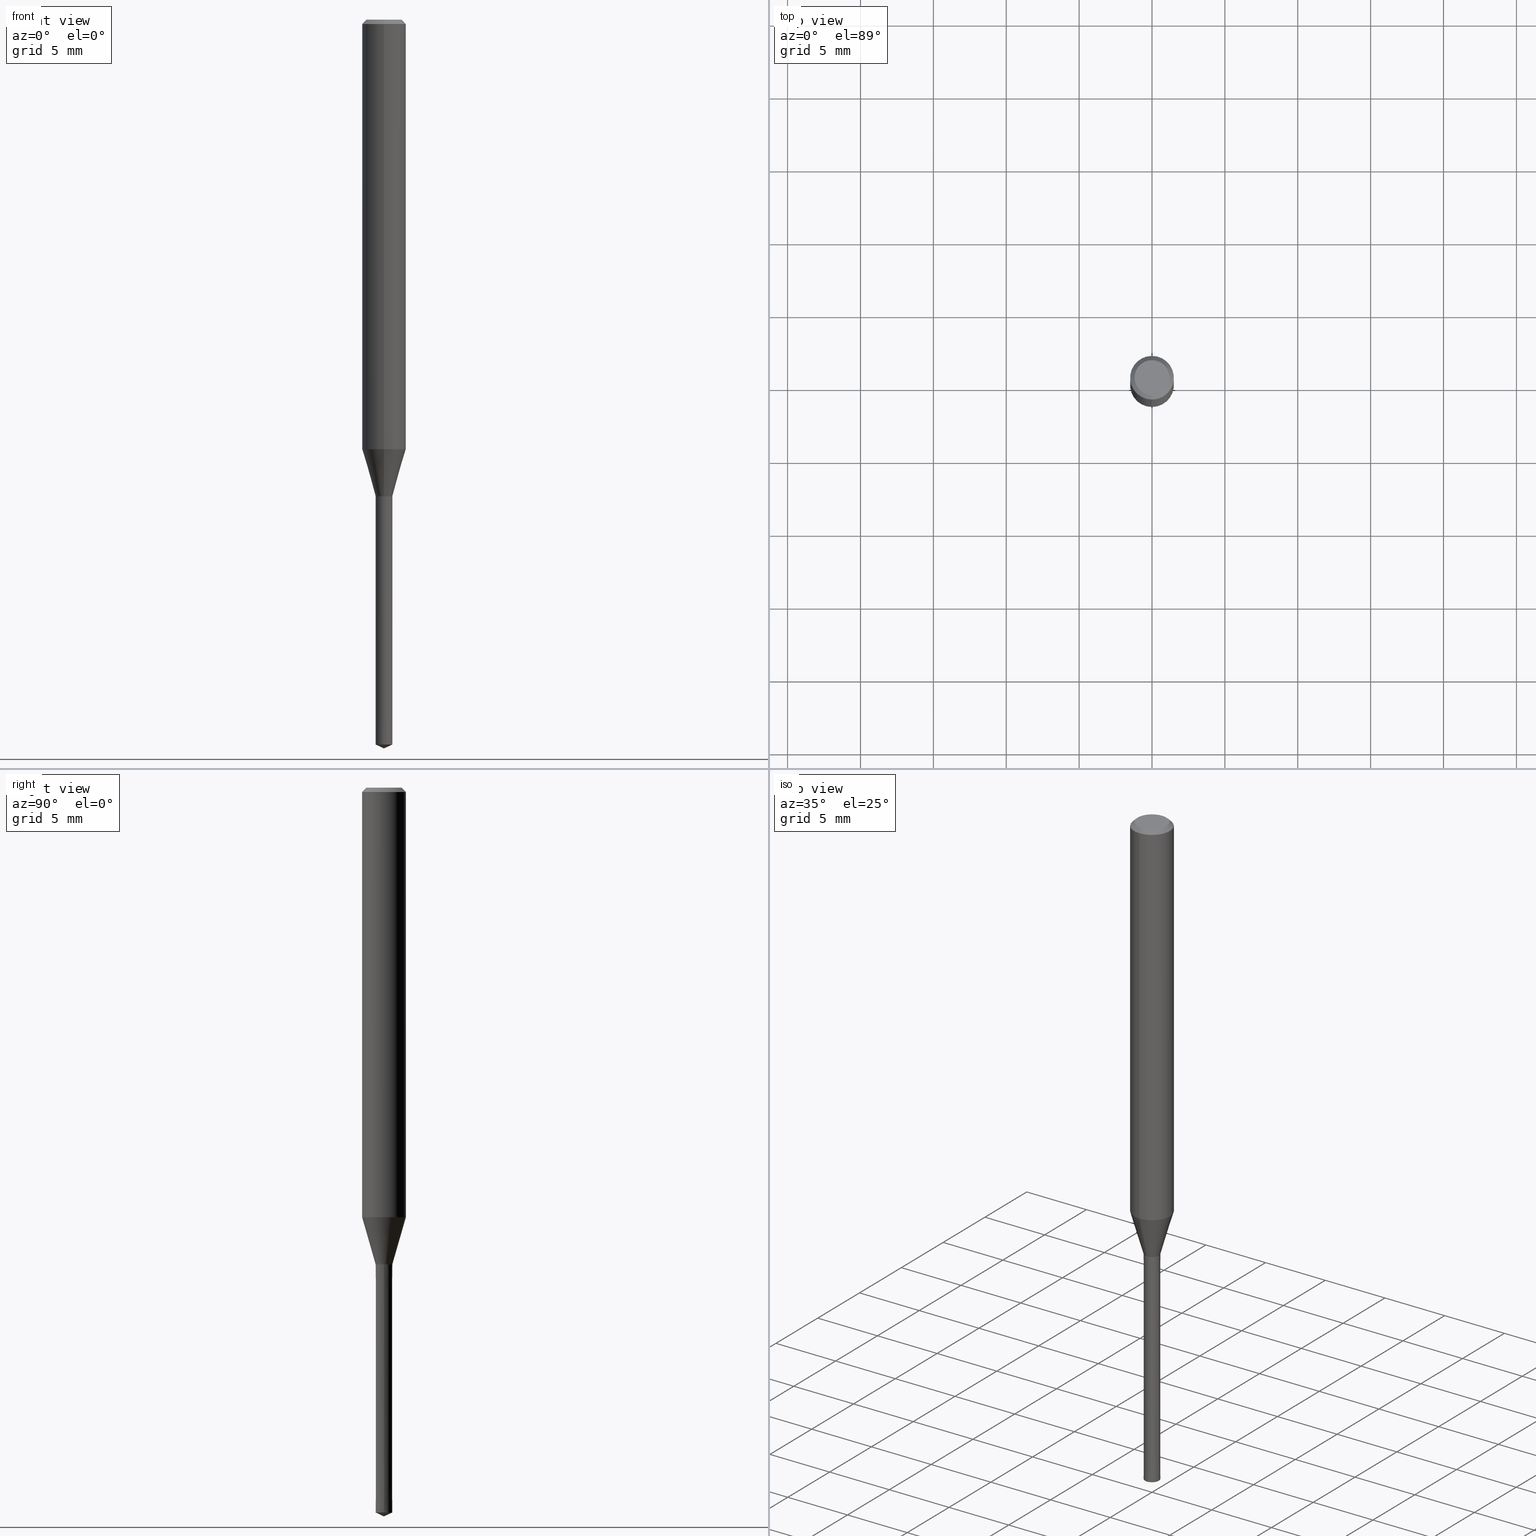
[diagram: canonical four-view strip — front | top / right | iso, engineering-drawing reading convention]
A machine part, canonical four-view strip (front | top / right | iso — engineering-drawing reading convention). The complete STEP part file that produces these views, byte-faithful:
ISO-10303-21;
HEADER;
FILE_DESCRIPTION(('no description'),'unknown implementation level');
FILE_NAME('UTDLX2115-173-Huellk.stp','  ',('CIMSOURCE GmbH'),('CADClick - KiM GmbH - www.kimweb.de'),'unknown preprocess','ACIS','unknown authorization');
FILE_SCHEMA(('automotive_design'));
ENDSEC;
DATA;
#1=MECHANICAL_DESIGN_GEOMETRIC_PRESENTATION_REPRESENTATION(' ',(#14,#15,#16,#17,#18,#19,#20,#21,#22,#23,#24,#25,#26,#27,#28,#29,#30,#31,#32,#33,#34,#35,#36,#37,#38,#39,#40,#41,#42,#43,#44,#45,#46,#47,#48,#49,#50,#51,#52,#53,#54,#55,#56,#57,#58,#59,#60,#61,#62,#63,#64,#65,#66,#67,#68,#69,#70,#71),#10);
#2=PRODUCT_DEFINITION_CONTEXT('',#72,'design');
#3=APPLICATION_PROTOCOL_DEFINITION('INTERNATIONAL STANDARD','automotive_design',1994,#72);
#4=PRODUCT_CATEGORY_RELATIONSHIP('NONE','NONE',#73,#74);
#5=SHAPE_DEFINITION_REPRESENTATION(#75,#76);
#6=PRODUCT_DEFINITION_CONTEXT('',#77,'design');
#7=APPLICATION_PROTOCOL_DEFINITION('INTERNATIONAL STANDARD','automotive_design',1994,#77);
#8=PRODUCT_CATEGORY_RELATIONSHIP('NONE','NONE',#78,#79);
#9=SHAPE_DEFINITION_REPRESENTATION(#80,#81);
#10= (GEOMETRIC_REPRESENTATION_CONTEXT(3)GLOBAL_UNCERTAINTY_ASSIGNED_CONTEXT((#84))GLOBAL_UNIT_ASSIGNED_CONTEXT((#86,#87,#88))REPRESENTATION_CONTEXT('NONE','WORKSPACE'));
#14=STYLED_ITEM('',(#90),#91);
#15=STYLED_ITEM('',(#92),#93);
#16=STYLED_ITEM('',(#94),#95);
#17=STYLED_ITEM('',(#96),#97);
#18=STYLED_ITEM('',(#98),#99);
#19=STYLED_ITEM('',(#100),#101);
#20=STYLED_ITEM('',(#102),#103);
#21=STYLED_ITEM('',(#104),#105);
#22=STYLED_ITEM('',(#106),#107);
#23=STYLED_ITEM('',(#108),#109);
#24=STYLED_ITEM('',(#110),#111);
#25=STYLED_ITEM('',(#112),#113);
#26=STYLED_ITEM('',(#114),#115);
#27=STYLED_ITEM('',(#116),#117);
#28=STYLED_ITEM('',(#118),#119);
#29=STYLED_ITEM('',(#120),#121);
#30=STYLED_ITEM('',(#122),#123);
#31=STYLED_ITEM('',(#124),#125);
#32=STYLED_ITEM('',(#126),#127);
#33=STYLED_ITEM('',(#128),#129);
#34=STYLED_ITEM('',(#130),#131);
#35=STYLED_ITEM('',(#132),#133);
#36=STYLED_ITEM('',(#134),#135);
#37=STYLED_ITEM('',(#136),#137);
#38=STYLED_ITEM('',(#138),#139);
#39=STYLED_ITEM('',(#140),#141);
#40=STYLED_ITEM('',(#142),#143);
#41=STYLED_ITEM('',(#144),#145);
#42=STYLED_ITEM('',(#146),#147);
#43=STYLED_ITEM('',(#148),#149);
#44=STYLED_ITEM('',(#150),#151);
#45=STYLED_ITEM('',(#152),#153);
#46=STYLED_ITEM('',(#154),#155);
#47=STYLED_ITEM('',(#156),#157);
#48=STYLED_ITEM('',(#158),#159);
#49=STYLED_ITEM('',(#160),#161);
#50=STYLED_ITEM('',(#162),#163);
#51=STYLED_ITEM('',(#164),#165);
#52=STYLED_ITEM('',(#166),#167);
#53=STYLED_ITEM('',(#168),#169);
#54=STYLED_ITEM('',(#170),#171);
#55=STYLED_ITEM('',(#172),#173);
#56=STYLED_ITEM('',(#174),#175);
#57=STYLED_ITEM('',(#176),#177);
#58=STYLED_ITEM('',(#178),#179);
#59=STYLED_ITEM('',(#180),#181);
#60=STYLED_ITEM('',(#182),#183);
#61=STYLED_ITEM('',(#184),#185);
#62=STYLED_ITEM('',(#186),#187);
#63=STYLED_ITEM('',(#188),#189);
#64=STYLED_ITEM('',(#190),#191);
#65=STYLED_ITEM('',(#192),#193);
#66=STYLED_ITEM('',(#194),#195);
#67=STYLED_ITEM('',(#196),#197);
#68=STYLED_ITEM('',(#198),#199);
#69=STYLED_ITEM('',(#200),#201);
#70=STYLED_ITEM('',(#202),#203);
#71=STYLED_ITEM('',(#204),#205);
#72=APPLICATION_CONTEXT(' ');
#73=PRODUCT_CATEGORY('part','NONE');
#74=PRODUCT_RELATED_PRODUCT_CATEGORY('detail',' ',(#206));
#75=PRODUCT_DEFINITION_SHAPE('NONE','NONE',#207);
#76=ADVANCED_BREP_SHAPE_REPRESENTATION('1',(#205,#208),#10);
#77=APPLICATION_CONTEXT(' ');
#78=PRODUCT_CATEGORY('part','NONE');
#79=PRODUCT_RELATED_PRODUCT_CATEGORY('detail',' ',(#209));
#80=PRODUCT_DEFINITION_SHAPE('NONE','NONE',#210);
#81=ADVANCED_BREP_SHAPE_REPRESENTATION('2',(#99,#211),#10);
#84=UNCERTAINTY_MEASURE_WITH_UNIT(LENGTH_MEASURE(1.0E-006),#86,'','');
#86= (CONVERSION_BASED_UNIT('MILLIMETRE',#214)LENGTH_UNIT()NAMED_UNIT(#217));
#87= (NAMED_UNIT(#219)PLANE_ANGLE_UNIT()SI_UNIT($,.RADIAN.));
#88= (NAMED_UNIT(#219)SOLID_ANGLE_UNIT()SI_UNIT($,.STERADIAN.));
#90=PRESENTATION_STYLE_ASSIGNMENT((#225));
#91=EDGE_CURVE('',#195,#145,#226,.T.);
#92=PRESENTATION_STYLE_ASSIGNMENT((#227));
#93=EDGE_CURVE('',#115,#117,#228,.T.);
#94=PRESENTATION_STYLE_ASSIGNMENT((#229));
#95=EDGE_CURVE('',#189,#177,#230,.T.);
#96=PRESENTATION_STYLE_ASSIGNMENT((#231));
#97=EDGE_CURVE('',#177,#183,#232,.T.);
#98=PRESENTATION_STYLE_ASSIGNMENT((#233));
#99=MANIFOLD_SOLID_BREP('2',#234);
#100=PRESENTATION_STYLE_ASSIGNMENT((#235));
#101=VERTEX_POINT('',#236);
#102=PRESENTATION_STYLE_ASSIGNMENT((#237));
#103=EDGE_CURVE('',#145,#101,#238,.T.);
#104=PRESENTATION_STYLE_ASSIGNMENT((#239));
#105=EDGE_CURVE('',#133,#197,#240,.T.);
#106=PRESENTATION_STYLE_ASSIGNMENT((#241));
#107=ADVANCED_FACE('',(#242),#243,.T.);
#108=PRESENTATION_STYLE_ASSIGNMENT((#244));
#109=EDGE_CURVE('',#177,#101,#245,.T.);
#110=PRESENTATION_STYLE_ASSIGNMENT((#246));
#111=EDGE_CURVE('',#101,#121,#247,.T.);
#112=PRESENTATION_STYLE_ASSIGNMENT((#248));
#113=EDGE_CURVE('',#189,#121,#249,.T.);
#114=PRESENTATION_STYLE_ASSIGNMENT((#250));
#115=VERTEX_POINT('',#251);
#116=PRESENTATION_STYLE_ASSIGNMENT((#252));
#117=VERTEX_POINT('',#253);
#118=PRESENTATION_STYLE_ASSIGNMENT((#254));
#119=EDGE_CURVE('',#163,#157,#255,.T.);
#120=PRESENTATION_STYLE_ASSIGNMENT((#256));
#121=VERTEX_POINT('',#257);
#122=PRESENTATION_STYLE_ASSIGNMENT((#258));
#123=EDGE_CURVE('',#183,#185,#259,.T.);
#124=PRESENTATION_STYLE_ASSIGNMENT((#260));
#125=ADVANCED_FACE('',(#261),#262,.T.);
#126=PRESENTATION_STYLE_ASSIGNMENT((#263));
#127=ADVANCED_FACE('',(#264),#265,.T.);
#128=PRESENTATION_STYLE_ASSIGNMENT((#266));
#129=EDGE_CURVE('',#183,#145,#267,.T.);
#130=PRESENTATION_STYLE_ASSIGNMENT((#268));
#131=EDGE_CURVE('',#101,#177,#269,.T.);
#132=PRESENTATION_STYLE_ASSIGNMENT((#270));
#133=VERTEX_POINT('',#271);
#134=PRESENTATION_STYLE_ASSIGNMENT((#272));
#135=ADVANCED_FACE('',(#273),#274,.T.);
#136=PRESENTATION_STYLE_ASSIGNMENT((#275));
#137=EDGE_CURVE('',#117,#115,#276,.T.);
#138=PRESENTATION_STYLE_ASSIGNMENT((#277));
#139=ADVANCED_FACE('',(#278),#279,.T.);
#140=PRESENTATION_STYLE_ASSIGNMENT((#280));
#141=EDGE_CURVE('',#163,#115,#281,.T.);
#142=PRESENTATION_STYLE_ASSIGNMENT((#282));
#143=EDGE_CURVE('',#157,#151,#283,.T.);
#144=PRESENTATION_STYLE_ASSIGNMENT((#284));
#145=VERTEX_POINT('',#285);
#146=PRESENTATION_STYLE_ASSIGNMENT((#286));
#147=ADVANCED_FACE('',(#287),#288,.T.);
#148=PRESENTATION_STYLE_ASSIGNMENT((#289));
#149=ADVANCED_FACE('',(#290),#291,.T.);
#150=PRESENTATION_STYLE_ASSIGNMENT((#292));
#151=VERTEX_POINT('',#293);
#152=PRESENTATION_STYLE_ASSIGNMENT((#294));
#153=ADVANCED_FACE('',(#295),#296,.T.);
#154=PRESENTATION_STYLE_ASSIGNMENT((#297));
#155=EDGE_CURVE('',#185,#195,#298,.T.);
#156=PRESENTATION_STYLE_ASSIGNMENT((#299));
#157=VERTEX_POINT('',#300);
#158=PRESENTATION_STYLE_ASSIGNMENT((#301));
#159=EDGE_CURVE('',#197,#195,#302,.T.);
#160=PRESENTATION_STYLE_ASSIGNMENT((#303));
#161=EDGE_CURVE('',#117,#157,#304,.T.);
#162=PRESENTATION_STYLE_ASSIGNMENT((#305));
#163=VERTEX_POINT('',#306);
#164=PRESENTATION_STYLE_ASSIGNMENT((#307));
#165=ADVANCED_FACE('',(#308),#309,.T.);
#166=PRESENTATION_STYLE_ASSIGNMENT((#310));
#167=EDGE_CURVE('',#185,#133,#311,.T.);
#168=PRESENTATION_STYLE_ASSIGNMENT((#312));
#169=EDGE_CURVE('',#197,#133,#313,.T.);
#170=PRESENTATION_STYLE_ASSIGNMENT((#314));
#171=EDGE_CURVE('',#121,#189,#315,.T.);
#172=PRESENTATION_STYLE_ASSIGNMENT((#316));
#173=ADVANCED_FACE('',(#317),#318,.T.);
#174=PRESENTATION_STYLE_ASSIGNMENT((#319));
#175=ADVANCED_FACE('',(#320),#321,.T.);
#176=PRESENTATION_STYLE_ASSIGNMENT((#322));
#177=VERTEX_POINT('',#323);
#178=PRESENTATION_STYLE_ASSIGNMENT((#324));
#179=EDGE_CURVE('',#151,#163,#325,.T.);
#180=PRESENTATION_STYLE_ASSIGNMENT((#326));
#181=EDGE_CURVE('',#195,#185,#327,.T.);
#182=PRESENTATION_STYLE_ASSIGNMENT((#328));
#183=VERTEX_POINT('',#329);
#184=PRESENTATION_STYLE_ASSIGNMENT((#330));
#185=VERTEX_POINT('',#331);
#186=PRESENTATION_STYLE_ASSIGNMENT((#332));
#187=ADVANCED_FACE('',(#333),#334,.T.);
#188=PRESENTATION_STYLE_ASSIGNMENT((#335));
#189=VERTEX_POINT('',#336);
#190=PRESENTATION_STYLE_ASSIGNMENT((#337));
#191=ADVANCED_FACE('',(#338),#339,.T.);
#192=PRESENTATION_STYLE_ASSIGNMENT((#340));
#193=EDGE_CURVE('',#157,#163,#341,.T.);
#194=PRESENTATION_STYLE_ASSIGNMENT((#342));
#195=VERTEX_POINT('',#343);
#196=PRESENTATION_STYLE_ASSIGNMENT((#344));
#197=VERTEX_POINT('',#345);
#198=PRESENTATION_STYLE_ASSIGNMENT((#346));
#199=EDGE_CURVE('',#145,#183,#347,.T.);
#200=PRESENTATION_STYLE_ASSIGNMENT((#348));
#201=ADVANCED_FACE('',(#349),#350,.T.);
#202=PRESENTATION_STYLE_ASSIGNMENT((#351));
#203=ADVANCED_FACE('',(#352),#353,.T.);
#204=PRESENTATION_STYLE_ASSIGNMENT((#354));
#205=MANIFOLD_SOLID_BREP('1',#355);
#206=PRODUCT('1','1','PART-1-DESC',(#356));
#207=PRODUCT_DEFINITION('NONE','NONE',#357,#2);
#208=AXIS2_PLACEMENT_3D('',#358,#359,#360);
#209=PRODUCT('2','2','PART-2-DESC',(#361));
#210=PRODUCT_DEFINITION('NONE','NONE',#362,#6);
#211=AXIS2_PLACEMENT_3D('',#363,#364,#365);
#214=LENGTH_MEASURE_WITH_UNIT(LENGTH_MEASURE(1.0),#366);
#217=DIMENSIONAL_EXPONENTS(1.0,0.0,0.0,0.0,0.0,0.0,0.0);
#219=DIMENSIONAL_EXPONENTS(0.0,0.0,0.0,0.0,0.0,0.0,0.0);
#225=CURVE_STYLE('',#367,POSITIVE_LENGTH_MEASURE(1.0E-006),#368);
#226=LINE('',#369,#370);
#227=CURVE_STYLE('',#371,POSITIVE_LENGTH_MEASURE(1.0E-006),#372);
#228=CIRCLE('',#373,0.576);
#229=CURVE_STYLE('',#374,POSITIVE_LENGTH_MEASURE(1.0E-006),#375);
#230=LINE('',#376,#377);
#231=CURVE_STYLE('',#378,POSITIVE_LENGTH_MEASURE(1.0E-006),#379);
#232=LINE('',#380,#381);
#233=SURFACE_STYLE_USAGE(.BOTH.,#382);
#234=CLOSED_SHELL('',(#149,#135,#125,#175,#153));
#235=POINT_STYLE(' ',#383,POSITIVE_LENGTH_MEASURE(1.0E-006),#384);
#236=CARTESIAN_POINT('',(1.83690953073357E-016,-1.5,-0.300000000000001));
#237=CURVE_STYLE('',#385,POSITIVE_LENGTH_MEASURE(1.0E-006),#386);
#238=LINE('',#387,#388);
#239=CURVE_STYLE('',#389,POSITIVE_LENGTH_MEASURE(1.0E-006),#390);
#240=CIRCLE('',#391,0.5755);
#241=SURFACE_STYLE_USAGE(.BOTH.,#392);
#242=FACE_OUTER_BOUND('',#393,.T.);
#243=CYLINDRICAL_SURFACE('',#394,1.5);
#244=CURVE_STYLE('',#395,POSITIVE_LENGTH_MEASURE(1.0E-006),#396);
#245=CIRCLE('',#397,1.5);
#246=CURVE_STYLE('',#398,POSITIVE_LENGTH_MEASURE(1.0E-006),#399);
#247=LINE('',#400,#401);
#248=CURVE_STYLE('',#402,POSITIVE_LENGTH_MEASURE(1.0E-006),#403);
#249=CIRCLE('',#404,1.2);
#250=POINT_STYLE(' ',#405,POSITIVE_LENGTH_MEASURE(1.0E-006),#406);
#251=CARTESIAN_POINT('',(0.576,7.05373259801689E-017,-32.7));
#252=POINT_STYLE(' ',#407,POSITIVE_LENGTH_MEASURE(1.0E-006),#408);
#253=CARTESIAN_POINT('',(-0.576,0.0,-32.7));
#254=CURVE_STYLE('',#409,POSITIVE_LENGTH_MEASURE(1.0E-006),#410);
#255=CIRCLE('',#411,0.575);
#256=POINT_STYLE(' ',#412,POSITIVE_LENGTH_MEASURE(1.0E-006),#413);
#257=CARTESIAN_POINT('',(1.46952762458685E-016,-1.2,0.0));
#258=CURVE_STYLE('',#414,POSITIVE_LENGTH_MEASURE(1.0E-006),#415);
#259=LINE('',#416,#417);
#260=SURFACE_STYLE_USAGE(.BOTH.,#418);
#261=FACE_OUTER_BOUND('',#419,.T.);
#262=PLANE('',#420);
#263=SURFACE_STYLE_USAGE(.BOTH.,#421);
#264=FACE_OUTER_BOUND('',#422,.T.);
#265=CYLINDRICAL_SURFACE('',#423,1.5);
#266=CURVE_STYLE('',#424,POSITIVE_LENGTH_MEASURE(1.0E-006),#425);
#267=CIRCLE('',#426,1.5);
#268=CURVE_STYLE('',#427,POSITIVE_LENGTH_MEASURE(1.0E-006),#428);
#269=CIRCLE('',#429,1.5);
#270=POINT_STYLE(' ',#430,POSITIVE_LENGTH_MEASURE(1.0E-006),#431);
#271=CARTESIAN_POINT('',(0.0,0.5755,-32.7));
#272=SURFACE_STYLE_USAGE(.BOTH.,#432);
#273=FACE_OUTER_BOUND('',#433,.T.);
#274=CONICAL_SURFACE('',#434,0.5755,5.87134481909046E-005);
#275=CURVE_STYLE('',#435,POSITIVE_LENGTH_MEASURE(1.0E-006),#436);
#276=CIRCLE('',#437,0.576);
#277=SURFACE_STYLE_USAGE(.BOTH.,#438);
#278=FACE_OUTER_BOUND('',#439,.T.);
#279=CONICAL_SURFACE('',#440,1.0375,0.279312190951098);
#280=CURVE_STYLE('',#441,POSITIVE_LENGTH_MEASURE(1.0E-006),#442);
#281=LINE('',#443,#444);
#282=CURVE_STYLE('',#445,POSITIVE_LENGTH_MEASURE(1.0E-006),#446);
#283=LINE('',#447,#448);
#284=POINT_STYLE(' ',#449,POSITIVE_LENGTH_MEASURE(1.0E-006),#450);
#285=CARTESIAN_POINT('',(1.83690953073357E-016,-1.5,-29.474));
#286=SURFACE_STYLE_USAGE(.BOTH.,#451);
#287=FACE_OUTER_BOUND('',#452,.T.);
#288=CONICAL_SURFACE('',#453,1.35,0.785398163397447);
#289=SURFACE_STYLE_USAGE(.BOTH.,#454);
#290=FACE_OUTER_BOUND('',#455,.T.);
#291=CONICAL_SURFACE('',#456,0.2875,1.13446401870914);
#292=POINT_STYLE(' ',#457,POSITIVE_LENGTH_MEASURE(1.0E-006),#458);
#293=CARTESIAN_POINT('',(0.0,0.0,-50.0));
#294=SURFACE_STYLE_USAGE(.BOTH.,#459);
#295=FACE_OUTER_BOUND('',#460,.T.);
#296=CONICAL_SURFACE('',#461,0.2875,1.13446401870914);
#297=CURVE_STYLE('',#462,POSITIVE_LENGTH_MEASURE(1.0E-006),#463);
#298=CIRCLE('',#464,0.575);
#299=POINT_STYLE(' ',#465,POSITIVE_LENGTH_MEASURE(1.0E-006),#466);
#300=CARTESIAN_POINT('',(-0.575,0.0,-49.7318731));
#301=CURVE_STYLE('',#467,POSITIVE_LENGTH_MEASURE(1.0E-006),#468);
#302=LINE('',#469,#470);
#303=CURVE_STYLE('',#471,POSITIVE_LENGTH_MEASURE(1.0E-006),#472);
#304=LINE('',#473,#474);
#305=POINT_STYLE(' ',#475,POSITIVE_LENGTH_MEASURE(1.0E-006),#476);
#306=CARTESIAN_POINT('',(0.575,7.04148653447867E-017,-49.7318731));
#307=SURFACE_STYLE_USAGE(.BOTH.,#477);
#308=FACE_OUTER_BOUND('',#478,.T.);
#309=CONICAL_SURFACE('',#479,1.35,0.785398163397447);
#310=CURVE_STYLE('',#480,POSITIVE_LENGTH_MEASURE(1.0E-006),#481);
#311=LINE('',#482,#483);
#312=CURVE_STYLE('',#484,POSITIVE_LENGTH_MEASURE(1.0E-006),#485);
#313=CIRCLE('',#486,0.5755);
#314=CURVE_STYLE('',#487,POSITIVE_LENGTH_MEASURE(1.0E-006),#488);
#315=CIRCLE('',#489,1.2);
#316=SURFACE_STYLE_USAGE(.BOTH.,#490);
#317=FACE_OUTER_BOUND('',#491,.T.);
#318=CONICAL_SURFACE('',#492,0.57525,0.523598775598234);
#319=SURFACE_STYLE_USAGE(.BOTH.,#493);
#320=FACE_OUTER_BOUND('',#494,.T.);
#321=CONICAL_SURFACE('',#495,0.5755,5.87134481909046E-005);
#322=POINT_STYLE(' ',#496,POSITIVE_LENGTH_MEASURE(1.0E-006),#497);
#323=CARTESIAN_POINT('',(0.0,1.5,-0.300000000000001));
#324=CURVE_STYLE('',#498,POSITIVE_LENGTH_MEASURE(1.0E-006),#499);
#325=LINE('',#500,#501);
#326=CURVE_STYLE('',#502,POSITIVE_LENGTH_MEASURE(1.0E-006),#503);
#327=CIRCLE('',#504,0.575);
#328=POINT_STYLE(' ',#505,POSITIVE_LENGTH_MEASURE(1.0E-006),#506);
#329=CARTESIAN_POINT('',(0.0,1.5,-29.474));
#330=POINT_STYLE(' ',#507,POSITIVE_LENGTH_MEASURE(1.0E-006),#508);
#331=CARTESIAN_POINT('',(0.0,0.575,-32.6991339745962));
#332=SURFACE_STYLE_USAGE(.BOTH.,#509);
#333=FACE_OUTER_BOUND('',#510,.T.);
#334=CONICAL_SURFACE('',#511,0.57525,0.523598775598234);
#335=POINT_STYLE(' ',#512,POSITIVE_LENGTH_MEASURE(1.0E-006),#513);
#336=CARTESIAN_POINT('',(0.0,1.2,0.0));
#337=SURFACE_STYLE_USAGE(.BOTH.,#514);
#338=FACE_OUTER_BOUND('',#515,.T.);
#339=PLANE('',#516);
#340=CURVE_STYLE('',#517,POSITIVE_LENGTH_MEASURE(1.0E-006),#518);
#341=CIRCLE('',#519,0.575);
#342=POINT_STYLE(' ',#520,POSITIVE_LENGTH_MEASURE(1.0E-006),#521);
#343=CARTESIAN_POINT('',(7.04148653447867E-017,-0.575,-32.6991339745962));
#344=POINT_STYLE(' ',#522,POSITIVE_LENGTH_MEASURE(1.0E-006),#523);
#345=CARTESIAN_POINT('',(7.04760956624778E-017,-0.5755,-32.7));
#346=CURVE_STYLE('',#524,POSITIVE_LENGTH_MEASURE(1.0E-006),#525);
#347=CIRCLE('',#526,1.5);
#348=SURFACE_STYLE_USAGE(.BOTH.,#527);
#349=FACE_OUTER_BOUND('',#528,.T.);
#350=CONICAL_SURFACE('',#529,1.0375,0.279312190951098);
#351=SURFACE_STYLE_USAGE(.BOTH.,#530);
#352=FACE_OUTER_BOUND('',#531,.T.);
#353=PLANE('',#532);
#354=SURFACE_STYLE_USAGE(.BOTH.,#533);
#355=CLOSED_SHELL('',(#187,#201,#127,#147,#203,#165,#107,#139,#173,#191));
#356=PRODUCT_CONTEXT('',#72,'mechanical');
#357=PRODUCT_DEFINITION_FORMATION_WITH_SPECIFIED_SOURCE(' ','NONE',#206,.NOT_KNOWN.);
#358=CARTESIAN_POINT('',(0.0,0.0,0.0));
#359=DIRECTION('',(0.0,0.0,1.0));
#360=DIRECTION('',(1.0,0.0,0.0));
#361=PRODUCT_CONTEXT('',#77,'mechanical');
#362=PRODUCT_DEFINITION_FORMATION_WITH_SPECIFIED_SOURCE(' ','NONE',#209,.NOT_KNOWN.);
#363=CARTESIAN_POINT('',(0.0,0.0,0.0));
#364=DIRECTION('',(0.0,0.0,1.0));
#365=DIRECTION('',(1.0,0.0,0.0));
#366= (NAMED_UNIT(#217)LENGTH_UNIT()SI_UNIT(.MILLI.,.METRE.));
#367=DRAUGHTING_PRE_DEFINED_CURVE_FONT('continuous');
#368=COLOUR_RGB('',0.498039215803146,0.498039215803146,0.498039215803146);
#369=CARTESIAN_POINT('',(1.27052909209072E-016,-1.0375,-31.0865669872981));
#370=VECTOR('',#535,1.0);
#371=DRAUGHTING_PRE_DEFINED_CURVE_FONT('continuous');
#372=COLOUR_RGB('',0.800000011920929,0.800000011920929,0.800000011920929);
#373=AXIS2_PLACEMENT_3D('',#536,#537,#538);
#374=DRAUGHTING_PRE_DEFINED_CURVE_FONT('continuous');
#375=COLOUR_RGB('',0.498039215803146,0.498039215803146,0.498039215803146);
#376=CARTESIAN_POINT('',(-1.65321857766021E-016,1.35,-0.149999999999999));
#377=VECTOR('',#539,1.0);
#378=DRAUGHTING_PRE_DEFINED_CURVE_FONT('continuous');
#379=COLOUR_RGB('',0.498039215803146,0.498039215803146,0.498039215803146);
#380=CARTESIAN_POINT('',(-1.83690953073357E-016,1.5,-14.887));
#381=VECTOR('',#540,1.0);
#382=SURFACE_SIDE_STYLE('',(#541));
#383=PRE_DEFINED_MARKER('');
#384=COLOUR_RGB('',0.498039215803146,0.498039215803146,0.498039215803146);
#385=DRAUGHTING_PRE_DEFINED_CURVE_FONT('continuous');
#386=COLOUR_RGB('',0.498039215803146,0.498039215803146,0.498039215803146);
#387=CARTESIAN_POINT('',(1.83690953073357E-016,-1.5,-14.887));
#388=VECTOR('',#542,1.0);
#389=DRAUGHTING_PRE_DEFINED_CURVE_FONT('continuous');
#390=COLOUR_RGB('',0.498039215803146,0.498039215803146,0.498039215803146);
#391=AXIS2_PLACEMENT_3D('',#543,#544,#545);
#392=SURFACE_SIDE_STYLE('',(#546));
#393=EDGE_LOOP('',(#547,#548,#549,#550));
#394=AXIS2_PLACEMENT_3D('',#551,#552,#553);
#395=DRAUGHTING_PRE_DEFINED_CURVE_FONT('continuous');
#396=COLOUR_RGB('',0.498039215803146,0.498039215803146,0.498039215803146);
#397=AXIS2_PLACEMENT_3D('',#554,#555,#556);
#398=DRAUGHTING_PRE_DEFINED_CURVE_FONT('continuous');
#399=COLOUR_RGB('',0.498039215803146,0.498039215803146,0.498039215803146);
#400=CARTESIAN_POINT('',(1.65321857766021E-016,-1.35,-0.149999999999999));
#401=VECTOR('',#557,1.0);
#402=DRAUGHTING_PRE_DEFINED_CURVE_FONT('continuous');
#403=COLOUR_RGB('',0.498039215803146,0.498039215803146,0.498039215803146);
#404=AXIS2_PLACEMENT_3D('',#558,#559,#560);
#405=PRE_DEFINED_MARKER('');
#406=COLOUR_RGB('',0.800000011920929,0.800000011920929,0.800000011920929);
#407=PRE_DEFINED_MARKER('');
#408=COLOUR_RGB('',0.800000011920929,0.800000011920929,0.800000011920929);
#409=DRAUGHTING_PRE_DEFINED_CURVE_FONT('continuous');
#410=COLOUR_RGB('',0.800000011920929,0.800000011920929,0.800000011920929);
#411=AXIS2_PLACEMENT_3D('',#561,#562,#563);
#412=PRE_DEFINED_MARKER('');
#413=COLOUR_RGB('',0.498039215803146,0.498039215803146,0.498039215803146);
#414=DRAUGHTING_PRE_DEFINED_CURVE_FONT('continuous');
#415=COLOUR_RGB('',0.498039215803146,0.498039215803146,0.498039215803146);
#416=CARTESIAN_POINT('',(-1.27052909209072E-016,1.0375,-31.0865669872981));
#417=VECTOR('',#564,1.0);
#418=SURFACE_SIDE_STYLE('',(#565));
#419=EDGE_LOOP('',(#566,#567));
#420=AXIS2_PLACEMENT_3D('',#568,#569,#570);
#421=SURFACE_SIDE_STYLE('',(#571));
#422=EDGE_LOOP('',(#572,#573,#574,#575));
#423=AXIS2_PLACEMENT_3D('',#576,#577,#578);
#424=DRAUGHTING_PRE_DEFINED_CURVE_FONT('continuous');
#425=COLOUR_RGB('',0.498039215803146,0.498039215803146,0.498039215803146);
#426=AXIS2_PLACEMENT_3D('',#579,#580,#581);
#427=DRAUGHTING_PRE_DEFINED_CURVE_FONT('continuous');
#428=COLOUR_RGB('',0.498039215803146,0.498039215803146,0.498039215803146);
#429=AXIS2_PLACEMENT_3D('',#582,#583,#584);
#430=PRE_DEFINED_MARKER('');
#431=COLOUR_RGB('',0.498039215803146,0.498039215803146,0.498039215803146);
#432=SURFACE_SIDE_STYLE('',(#585));
#433=EDGE_LOOP('',(#586,#587,#588,#589));
#434=AXIS2_PLACEMENT_3D('',#590,#591,#592);
#435=DRAUGHTING_PRE_DEFINED_CURVE_FONT('continuous');
#436=COLOUR_RGB('',0.800000011920929,0.800000011920929,0.800000011920929);
#437=AXIS2_PLACEMENT_3D('',#593,#594,#595);
#438=SURFACE_SIDE_STYLE('',(#596));
#439=EDGE_LOOP('',(#597,#598,#599,#600));
#440=AXIS2_PLACEMENT_3D('',#601,#602,#603);
#441=DRAUGHTING_PRE_DEFINED_CURVE_FONT('continuous');
#442=COLOUR_RGB('',0.800000011920929,0.800000011920929,0.800000011920929);
#443=CARTESIAN_POINT('',(0.5755,7.04760956624778E-017,-41.21593655));
#444=VECTOR('',#604,1.0);
#445=DRAUGHTING_PRE_DEFINED_CURVE_FONT('continuous');
#446=COLOUR_RGB('',0.800000011920929,0.800000011920929,0.800000011920929);
#447=CARTESIAN_POINT('',(-0.2875,-3.52074326723934E-017,-49.86593655));
#448=VECTOR('',#605,1.0);
#449=PRE_DEFINED_MARKER('');
#450=COLOUR_RGB('',0.498039215803146,0.498039215803146,0.498039215803146);
#451=SURFACE_SIDE_STYLE('',(#606));
#452=EDGE_LOOP('',(#607,#608,#609,#610));
#453=AXIS2_PLACEMENT_3D('',#611,#612,#613);
#454=SURFACE_SIDE_STYLE('',(#614));
#455=EDGE_LOOP('',(#615,#616,#617));
#456=AXIS2_PLACEMENT_3D('',#618,#619,#620);
#457=PRE_DEFINED_MARKER('');
#458=COLOUR_RGB('',0.800000011920929,0.800000011920929,0.800000011920929);
#459=SURFACE_SIDE_STYLE('',(#621));
#460=EDGE_LOOP('',(#622,#623,#624));
#461=AXIS2_PLACEMENT_3D('',#625,#626,#627);
#462=DRAUGHTING_PRE_DEFINED_CURVE_FONT('continuous');
#463=COLOUR_RGB('',0.498039215803146,0.498039215803146,0.498039215803146);
#464=AXIS2_PLACEMENT_3D('',#628,#629,#630);
#465=PRE_DEFINED_MARKER('');
#466=COLOUR_RGB('',0.800000011920929,0.800000011920929,0.800000011920929);
#467=DRAUGHTING_PRE_DEFINED_CURVE_FONT('continuous');
#468=COLOUR_RGB('',0.498039215803146,0.498039215803146,0.498039215803146);
#469=CARTESIAN_POINT('',(7.04454805036323E-017,-0.57525,-32.6995669872981));
#470=VECTOR('',#631,1.0);
#471=DRAUGHTING_PRE_DEFINED_CURVE_FONT('continuous');
#472=COLOUR_RGB('',0.800000011920929,0.800000011920929,0.800000011920929);
#473=CARTESIAN_POINT('',(-0.5755,-7.04760956624778E-017,-41.21593655));
#474=VECTOR('',#632,1.0);
#475=PRE_DEFINED_MARKER('');
#476=COLOUR_RGB('',0.800000011920929,0.800000011920929,0.800000011920929);
#477=SURFACE_SIDE_STYLE('',(#633));
#478=EDGE_LOOP('',(#634,#635,#636,#637));
#479=AXIS2_PLACEMENT_3D('',#638,#639,#640);
#480=DRAUGHTING_PRE_DEFINED_CURVE_FONT('continuous');
#481=COLOUR_RGB('',0.498039215803146,0.498039215803146,0.498039215803146);
#482=CARTESIAN_POINT('',(-7.04454805036322E-017,0.57525,-32.6995669872981));
#483=VECTOR('',#641,1.0);
#484=DRAUGHTING_PRE_DEFINED_CURVE_FONT('continuous');
#485=COLOUR_RGB('',0.498039215803146,0.498039215803146,0.498039215803146);
#486=AXIS2_PLACEMENT_3D('',#642,#643,#644);
#487=DRAUGHTING_PRE_DEFINED_CURVE_FONT('continuous');
#488=COLOUR_RGB('',0.498039215803146,0.498039215803146,0.498039215803146);
#489=AXIS2_PLACEMENT_3D('',#645,#646,#647);
#490=SURFACE_SIDE_STYLE('',(#648));
#491=EDGE_LOOP('',(#649,#650,#651,#652));
#492=AXIS2_PLACEMENT_3D('',#653,#654,#655);
#493=SURFACE_SIDE_STYLE('',(#656));
#494=EDGE_LOOP('',(#657,#658,#659,#660));
#495=AXIS2_PLACEMENT_3D('',#661,#662,#663);
#496=PRE_DEFINED_MARKER('');
#497=COLOUR_RGB('',0.498039215803146,0.498039215803146,0.498039215803146);
#498=DRAUGHTING_PRE_DEFINED_CURVE_FONT('continuous');
#499=COLOUR_RGB('',0.800000011920929,0.800000011920929,0.800000011920929);
#500=CARTESIAN_POINT('',(0.2875,3.52074326723934E-017,-49.86593655));
#501=VECTOR('',#664,1.0);
#502=DRAUGHTING_PRE_DEFINED_CURVE_FONT('continuous');
#503=COLOUR_RGB('',0.498039215803146,0.498039215803146,0.498039215803146);
#504=AXIS2_PLACEMENT_3D('',#665,#666,#667);
#505=PRE_DEFINED_MARKER('');
#506=COLOUR_RGB('',0.498039215803146,0.498039215803146,0.498039215803146);
#507=PRE_DEFINED_MARKER('');
#508=COLOUR_RGB('',0.498039215803146,0.498039215803146,0.498039215803146);
#509=SURFACE_SIDE_STYLE('',(#668));
#510=EDGE_LOOP('',(#669,#670,#671,#672));
#511=AXIS2_PLACEMENT_3D('',#673,#674,#675);
#512=PRE_DEFINED_MARKER('');
#513=COLOUR_RGB('',0.498039215803146,0.498039215803146,0.498039215803146);
#514=SURFACE_SIDE_STYLE('',(#676));
#515=EDGE_LOOP('',(#677,#678));
#516=AXIS2_PLACEMENT_3D('',#679,#680,#681);
#517=DRAUGHTING_PRE_DEFINED_CURVE_FONT('continuous');
#518=COLOUR_RGB('',0.800000011920929,0.800000011920929,0.800000011920929);
#519=AXIS2_PLACEMENT_3D('',#682,#683,#684);
#520=PRE_DEFINED_MARKER('');
#521=COLOUR_RGB('',0.498039215803146,0.498039215803146,0.498039215803146);
#522=PRE_DEFINED_MARKER('');
#523=COLOUR_RGB('',0.498039215803146,0.498039215803146,0.498039215803146);
#524=DRAUGHTING_PRE_DEFINED_CURVE_FONT('continuous');
#525=COLOUR_RGB('',0.498039215803146,0.498039215803146,0.498039215803146);
#526=AXIS2_PLACEMENT_3D('',#685,#686,#687);
#527=SURFACE_SIDE_STYLE('',(#688));
#528=EDGE_LOOP('',(#689,#690,#691,#692));
#529=AXIS2_PLACEMENT_3D('',#693,#694,#695);
#530=SURFACE_SIDE_STYLE('',(#696));
#531=EDGE_LOOP('',(#697,#698));
#532=AXIS2_PLACEMENT_3D('',#699,#700,#701);
#533=SURFACE_SIDE_STYLE('',(#702));
#535=DIRECTION('',(3.3761731064943E-017,-0.275694560619926,0.961245290882918));
#536=CARTESIAN_POINT('',(0.0,0.0,-32.7));
#537=DIRECTION('',(0.0,0.0,-1.0));
#538=DIRECTION('',(-1.0,0.0,0.0));
#539=DIRECTION('',(-8.65927457071934E-017,0.707106781186546,-0.707106781186549));
#540=DIRECTION('',(0.0,0.0,-1.0));
#541=SURFACE_STYLE_FILL_AREA(#703);
#542=DIRECTION('',(-0.0,-0.0,1.0));
#543=CARTESIAN_POINT('',(0.0,0.0,-32.7));
#544=DIRECTION('',(0.0,0.0,-1.0));
#545=DIRECTION('',(0.0,1.0,0.0));
#546=SURFACE_STYLE_FILL_AREA(#704);
#547=ORIENTED_EDGE('',*,*,#97,.T.);
#548=ORIENTED_EDGE('',*,*,#199,.F.);
#549=ORIENTED_EDGE('',*,*,#103,.T.);
#550=ORIENTED_EDGE('',*,*,#131,.T.);
#551=CARTESIAN_POINT('',(0.0,0.0,-14.887));
#552=DIRECTION('',(-0.0,-0.0,1.0));
#553=DIRECTION('',(0.0,1.0,0.0));
#554=CARTESIAN_POINT('',(0.0,0.0,-0.300000000000001));
#555=DIRECTION('',(0.0,0.0,-1.0));
#556=DIRECTION('',(0.0,1.0,0.0));
#557=DIRECTION('',(-8.65927457071934E-017,0.707106781186546,0.707106781186549));
#558=CARTESIAN_POINT('',(0.0,0.0,0.0));
#559=DIRECTION('',(0.0,0.0,-1.0));
#560=DIRECTION('',(0.0,1.0,0.0));
#561=CARTESIAN_POINT('',(0.0,0.0,-49.7318731));
#562=DIRECTION('',(0.0,0.0,-1.0));
#563=DIRECTION('',(-1.0,0.0,0.0));
#564=DIRECTION('',(3.3761731064943E-017,-0.275694560619926,-0.961245290882918));
#565=SURFACE_STYLE_FILL_AREA(#705);
#566=ORIENTED_EDGE('',*,*,#137,.F.);
#567=ORIENTED_EDGE('',*,*,#93,.F.);
#568=CARTESIAN_POINT('',(-0.288,0.0,-32.7));
#569=DIRECTION('',(0.0,0.0,1.0));
#570=DIRECTION('',(1.0,0.0,0.0));
#571=SURFACE_STYLE_FILL_AREA(#706);
#572=ORIENTED_EDGE('',*,*,#97,.F.);
#573=ORIENTED_EDGE('',*,*,#109,.T.);
#574=ORIENTED_EDGE('',*,*,#103,.F.);
#575=ORIENTED_EDGE('',*,*,#129,.F.);
#576=CARTESIAN_POINT('',(0.0,0.0,-14.887));
#577=DIRECTION('',(-0.0,-0.0,1.0));
#578=DIRECTION('',(0.0,1.0,0.0));
#579=CARTESIAN_POINT('',(0.0,0.0,-29.474));
#580=DIRECTION('',(0.0,0.0,-1.0));
#581=DIRECTION('',(0.0,1.0,0.0));
#582=CARTESIAN_POINT('',(0.0,0.0,-0.300000000000001));
#583=DIRECTION('',(0.0,0.0,-1.0));
#584=DIRECTION('',(0.0,1.0,0.0));
#585=SURFACE_STYLE_FILL_AREA(#707);
#586=ORIENTED_EDGE('',*,*,#161,.F.);
#587=ORIENTED_EDGE('',*,*,#137,.T.);
#588=ORIENTED_EDGE('',*,*,#141,.F.);
#589=ORIENTED_EDGE('',*,*,#193,.F.);
#590=CARTESIAN_POINT('',(0.0,0.0,-41.21593655));
#591=DIRECTION('',(-0.0,-0.0,1.0));
#592=DIRECTION('',(-1.0,0.0,0.0));
#593=CARTESIAN_POINT('',(0.0,0.0,-32.7));
#594=DIRECTION('',(0.0,0.0,-1.0));
#595=DIRECTION('',(-1.0,0.0,0.0));
#596=SURFACE_STYLE_FILL_AREA(#708);
#597=ORIENTED_EDGE('',*,*,#123,.T.);
#598=ORIENTED_EDGE('',*,*,#181,.F.);
#599=ORIENTED_EDGE('',*,*,#91,.T.);
#600=ORIENTED_EDGE('',*,*,#199,.T.);
#601=CARTESIAN_POINT('',(0.0,0.0,-31.0865669872981));
#602=DIRECTION('',(-0.0,-0.0,1.0));
#603=DIRECTION('',(0.0,1.0,0.0));
#604=DIRECTION('',(5.87134481571711E-005,7.19008616680924E-021,0.999999998276366));
#605=DIRECTION('',(0.906307789112901,1.10987027706637E-016,-0.422618257288165));
#606=SURFACE_STYLE_FILL_AREA(#709);
#607=ORIENTED_EDGE('',*,*,#95,.F.);
#608=ORIENTED_EDGE('',*,*,#113,.T.);
#609=ORIENTED_EDGE('',*,*,#111,.F.);
#610=ORIENTED_EDGE('',*,*,#109,.F.);
#611=CARTESIAN_POINT('',(0.0,0.0,-0.149999999999999));
#612=DIRECTION('',(0.0,-0.0,-1.0));
#613=DIRECTION('',(0.0,1.0,0.0));
#614=SURFACE_STYLE_FILL_AREA(#710);
#615=ORIENTED_EDGE('',*,*,#179,.F.);
#616=ORIENTED_EDGE('',*,*,#143,.F.);
#617=ORIENTED_EDGE('',*,*,#193,.T.);
#618=CARTESIAN_POINT('',(0.0,0.0,-49.86593655));
#619=DIRECTION('',(-0.0,-0.0,1.0));
#620=DIRECTION('',(-1.0,0.0,0.0));
#621=SURFACE_STYLE_FILL_AREA(#711);
#622=ORIENTED_EDGE('',*,*,#179,.T.);
#623=ORIENTED_EDGE('',*,*,#119,.T.);
#624=ORIENTED_EDGE('',*,*,#143,.T.);
#625=CARTESIAN_POINT('',(0.0,0.0,-49.86593655));
#626=DIRECTION('',(-0.0,-0.0,1.0));
#627=DIRECTION('',(-1.0,0.0,0.0));
#628=CARTESIAN_POINT('',(0.0,0.0,-32.6991339745962));
#629=DIRECTION('',(0.0,0.0,-1.0));
#630=DIRECTION('',(0.0,1.0,0.0));
#631=DIRECTION('',(-6.12303176911117E-017,0.499999999999941,0.866025403784473));
#632=DIRECTION('',(5.87134481571711E-005,7.19008616680924E-021,-0.999999998276366));
#633=SURFACE_STYLE_FILL_AREA(#712);
#634=ORIENTED_EDGE('',*,*,#95,.T.);
#635=ORIENTED_EDGE('',*,*,#131,.F.);
#636=ORIENTED_EDGE('',*,*,#111,.T.);
#637=ORIENTED_EDGE('',*,*,#171,.T.);
#638=CARTESIAN_POINT('',(0.0,0.0,-0.149999999999999));
#639=DIRECTION('',(0.0,-0.0,-1.0));
#640=DIRECTION('',(0.0,1.0,0.0));
#641=DIRECTION('',(-6.12303176911117E-017,0.499999999999941,-0.866025403784473));
#642=CARTESIAN_POINT('',(0.0,0.0,-32.7));
#643=DIRECTION('',(0.0,0.0,-1.0));
#644=DIRECTION('',(0.0,1.0,0.0));
#645=CARTESIAN_POINT('',(0.0,0.0,0.0));
#646=DIRECTION('',(0.0,0.0,-1.0));
#647=DIRECTION('',(0.0,1.0,0.0));
#648=SURFACE_STYLE_FILL_AREA(#713);
#649=ORIENTED_EDGE('',*,*,#167,.T.);
#650=ORIENTED_EDGE('',*,*,#169,.F.);
#651=ORIENTED_EDGE('',*,*,#159,.T.);
#652=ORIENTED_EDGE('',*,*,#181,.T.);
#653=CARTESIAN_POINT('',(0.0,0.0,-32.6995669872981));
#654=DIRECTION('',(0.0,-0.0,-1.0));
#655=DIRECTION('',(0.0,1.0,0.0));
#656=SURFACE_STYLE_FILL_AREA(#714);
#657=ORIENTED_EDGE('',*,*,#161,.T.);
#658=ORIENTED_EDGE('',*,*,#119,.F.);
#659=ORIENTED_EDGE('',*,*,#141,.T.);
#660=ORIENTED_EDGE('',*,*,#93,.T.);
#661=CARTESIAN_POINT('',(0.0,0.0,-41.21593655));
#662=DIRECTION('',(-0.0,-0.0,1.0));
#663=DIRECTION('',(-1.0,0.0,0.0));
#664=DIRECTION('',(0.906307789112901,1.10987027706637E-016,0.422618257288165));
#665=CARTESIAN_POINT('',(0.0,0.0,-32.6991339745962));
#666=DIRECTION('',(0.0,0.0,-1.0));
#667=DIRECTION('',(0.0,1.0,0.0));
#668=SURFACE_STYLE_FILL_AREA(#715);
#669=ORIENTED_EDGE('',*,*,#167,.F.);
#670=ORIENTED_EDGE('',*,*,#155,.T.);
#671=ORIENTED_EDGE('',*,*,#159,.F.);
#672=ORIENTED_EDGE('',*,*,#105,.F.);
#673=CARTESIAN_POINT('',(0.0,0.0,-32.6995669872981));
#674=DIRECTION('',(0.0,-0.0,-1.0));
#675=DIRECTION('',(0.0,1.0,0.0));
#676=SURFACE_STYLE_FILL_AREA(#716);
#677=ORIENTED_EDGE('',*,*,#105,.T.);
#678=ORIENTED_EDGE('',*,*,#169,.T.);
#679=CARTESIAN_POINT('',(0.0,0.28775,-32.7));
#680=DIRECTION('',(0.0,0.0,-1.0));
#681=DIRECTION('',(0.0,1.0,0.0));
#682=CARTESIAN_POINT('',(0.0,0.0,-49.7318731));
#683=DIRECTION('',(0.0,0.0,-1.0));
#684=DIRECTION('',(-1.0,0.0,0.0));
#685=CARTESIAN_POINT('',(0.0,0.0,-29.474));
#686=DIRECTION('',(0.0,0.0,-1.0));
#687=DIRECTION('',(0.0,1.0,0.0));
#688=SURFACE_STYLE_FILL_AREA(#717);
#689=ORIENTED_EDGE('',*,*,#123,.F.);
#690=ORIENTED_EDGE('',*,*,#129,.T.);
#691=ORIENTED_EDGE('',*,*,#91,.F.);
#692=ORIENTED_EDGE('',*,*,#155,.F.);
#693=CARTESIAN_POINT('',(0.0,0.0,-31.0865669872981));
#694=DIRECTION('',(-0.0,-0.0,1.0));
#695=DIRECTION('',(0.0,1.0,0.0));
#696=SURFACE_STYLE_FILL_AREA(#718);
#697=ORIENTED_EDGE('',*,*,#113,.F.);
#698=ORIENTED_EDGE('',*,*,#171,.F.);
#699=CARTESIAN_POINT('',(0.0,0.6,0.0));
#700=DIRECTION('',(-0.0,0.0,1.0));
#701=DIRECTION('',(0.0,-1.0,0.0));
#702=SURFACE_STYLE_FILL_AREA(#719);
#703=FILL_AREA_STYLE('',(#720));
#704=FILL_AREA_STYLE('',(#721));
#705=FILL_AREA_STYLE('',(#722));
#706=FILL_AREA_STYLE('',(#723));
#707=FILL_AREA_STYLE('',(#724));
#708=FILL_AREA_STYLE('',(#725));
#709=FILL_AREA_STYLE('',(#726));
#710=FILL_AREA_STYLE('',(#727));
#711=FILL_AREA_STYLE('',(#728));
#712=FILL_AREA_STYLE('',(#729));
#713=FILL_AREA_STYLE('',(#730));
#714=FILL_AREA_STYLE('',(#731));
#715=FILL_AREA_STYLE('',(#732));
#716=FILL_AREA_STYLE('',(#733));
#717=FILL_AREA_STYLE('',(#734));
#718=FILL_AREA_STYLE('',(#735));
#719=FILL_AREA_STYLE('',(#736));
#720=FILL_AREA_STYLE_COLOUR('',#737);
#721=FILL_AREA_STYLE_COLOUR('',#738);
#722=FILL_AREA_STYLE_COLOUR('',#739);
#723=FILL_AREA_STYLE_COLOUR('',#740);
#724=FILL_AREA_STYLE_COLOUR('',#741);
#725=FILL_AREA_STYLE_COLOUR('',#742);
#726=FILL_AREA_STYLE_COLOUR('',#743);
#727=FILL_AREA_STYLE_COLOUR('',#744);
#728=FILL_AREA_STYLE_COLOUR('',#745);
#729=FILL_AREA_STYLE_COLOUR('',#746);
#730=FILL_AREA_STYLE_COLOUR('',#747);
#731=FILL_AREA_STYLE_COLOUR('',#748);
#732=FILL_AREA_STYLE_COLOUR('',#749);
#733=FILL_AREA_STYLE_COLOUR('',#750);
#734=FILL_AREA_STYLE_COLOUR('',#751);
#735=FILL_AREA_STYLE_COLOUR('',#752);
#736=FILL_AREA_STYLE_COLOUR('',#753);
#737=COLOUR_RGB('',0.800000011920929,0.800000011920929,0.800000011920929);
#738=COLOUR_RGB('',0.498039215803146,0.498039215803146,0.498039215803146);
#739=COLOUR_RGB('',0.800000011920929,0.800000011920929,0.800000011920929);
#740=COLOUR_RGB('',0.498039215803146,0.498039215803146,0.498039215803146);
#741=COLOUR_RGB('',0.800000011920929,0.800000011920929,0.800000011920929);
#742=COLOUR_RGB('',0.498039215803146,0.498039215803146,0.498039215803146);
#743=COLOUR_RGB('',0.498039215803146,0.498039215803146,0.498039215803146);
#744=COLOUR_RGB('',0.800000011920929,0.800000011920929,0.800000011920929);
#745=COLOUR_RGB('',0.800000011920929,0.800000011920929,0.800000011920929);
#746=COLOUR_RGB('',0.498039215803146,0.498039215803146,0.498039215803146);
#747=COLOUR_RGB('',0.498039215803146,0.498039215803146,0.498039215803146);
#748=COLOUR_RGB('',0.800000011920929,0.800000011920929,0.800000011920929);
#749=COLOUR_RGB('',0.498039215803146,0.498039215803146,0.498039215803146);
#750=COLOUR_RGB('',0.498039215803146,0.498039215803146,0.498039215803146);
#751=COLOUR_RGB('',0.498039215803146,0.498039215803146,0.498039215803146);
#752=COLOUR_RGB('',0.498039215803146,0.498039215803146,0.498039215803146);
#753=COLOUR_RGB('',0.498039215803146,0.498039215803146,0.498039215803146);
#754=AXIS2_PLACEMENT_3D('PCS',#755,#756,#757);
#755=CARTESIAN_POINT('',(0.0,0.0,0.0));
#756=DIRECTION('',(0.0,0.0,1.0));
#757=DIRECTION('',(1.0,0.0,0.0));
#758=AXIS2_PLACEMENT_3D('CIP',#759,#760,#761);
#759=CARTESIAN_POINT('',(0.0,0.0,-50.0));
#760=DIRECTION('',(0.0,0.0,1.0));
#761=DIRECTION('',(1.0,0.0,0.0));
#762=AXIS2_PLACEMENT_3D('CRP',#763,#764,#765);
#763=CARTESIAN_POINT('',(-0.575,0.0,-49.7319));
#764=DIRECTION('',(0.0,0.0,1.0));
#765=DIRECTION('',(1.0,0.0,0.0));
#766=AXIS2_PLACEMENT_3D('MCS',#767,#768,#769);
#767=CARTESIAN_POINT('',(0.0,0.0,-29.474));
#768=DIRECTION('',(0.0,0.0,1.0));
#769=DIRECTION('',(1.0,0.0,0.0));
#770=CONSTRUCTIVE_GEOMETRY_REPRESENTATION_RELATIONSHIP('coordinate systems',$,#76,#771);
#771=CONSTRUCTIVE_GEOMETRY_REPRESENTATION('coordinate systems',(#754,#758,#762,#766),#10);
ENDSEC;
END-ISO-10303-21;
